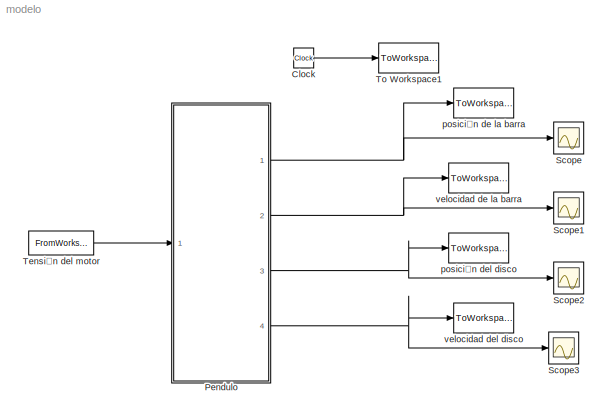
MODEL modelo
KIND model
BLOCK [Clock] Clock
  SID = 1
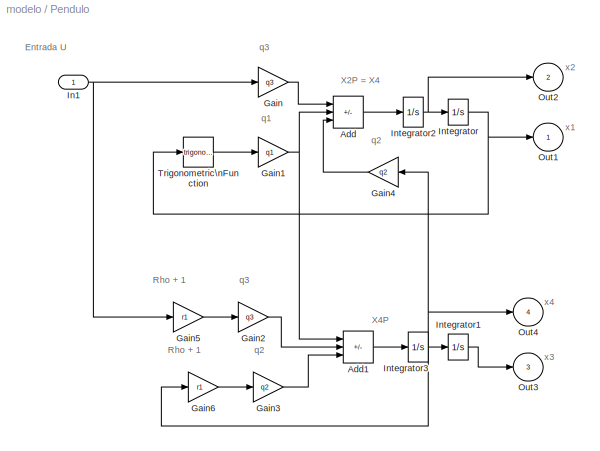
BLOCK [SubSystem] Pendulo
  Ports = [1, 4]
  RequestExecContextInheritance = off
  SID = 2
BLOCK [Sum] Pendulo/Add
  IconShape = rectangular
  Inputs = --+
  Ports = [3, 1]
  SID = 4
BLOCK [Sum] Pendulo/Add1
  IconShape = rectangular
  Inputs = ++-
  Ports = [3, 1]
  SID = 5
BLOCK [Gain] Pendulo/Gain
  Gain = q3
  SID = 6
BLOCK [Gain] Pendulo/Gain1
  Gain = q1
  SID = 7
BLOCK [Gain] Pendulo/Gain2
  Gain = q3
  SID = 8
BLOCK [Gain] Pendulo/Gain3
  Gain = q2
  SID = 48
BLOCK [Gain] Pendulo/Gain4
  Gain = q2
  SID = 42
BLOCK [Gain] Pendulo/Gain5
  Gain = r1
  SID = 45
BLOCK [Gain] Pendulo/Gain6
  Gain = r1
  SID = 49
BLOCK [Inport] Pendulo/In1
  SID = 3
BLOCK [Integrator] Pendulo/Integrator
  InitialCondition = x1_0
  Ports = [1, 1]
  SID = 10
BLOCK [Integrator] Pendulo/Integrator1
  InitialCondition = x3_0
  Ports = [1, 1]
  SID = 11
BLOCK [Integrator] Pendulo/Integrator2
  InitialCondition = x2_0
  Ports = [1, 1]
  SID = 12
BLOCK [Integrator] Pendulo/Integrator3
  InitialCondition = x4_0
  Ports = [1, 1]
  SID = 13
BLOCK [Outport] Pendulo/Out1
  SID = 16
BLOCK [Outport] Pendulo/Out2
  Port = 2
  SID = 17
BLOCK [Outport] Pendulo/Out3
  Port = 3
  SID = 18
BLOCK [Outport] Pendulo/Out4
  Port = 4
  SID = 19
BLOCK [Trigonometry] Pendulo/Trigonometric\nFunction
  Ports = [1, 1]
  SID = 14
BLOCK [Scope] Scope
  Floating = off
  NumInputPorts = 1
  Ports = [1]
  SID = 20
  ScopeSpecificationString = Simulink.scopes.TimeScopeBlockCfg('CurrentConfiguration', extmgr.ConfigurationSet(extmgr.Configuration('Core','General UI',true),extmgr.Configuration('Core','Source UI',true),extmgr.Configuration('Sources','WiredSimulink',true,'DataLoggingSaveFormat','StructureWithTime','DataLoggingLimitDataPoints',true,'DataLoggingDecimation','1','DataLoggingDecimateData',true),extmgr.Configuration('Visuals','Tim...<+1671ch>
BLOCK [Scope] Scope1
  Floating = off
  NumInputPorts = 1
  Ports = [1]
  SID = 21
  ScopeSpecificationString = Simulink.scopes.TimeScopeBlockCfg('CurrentConfiguration', extmgr.ConfigurationSet(extmgr.Configuration('Core','General UI',true),extmgr.Configuration('Core','Source UI',true),extmgr.Configuration('Sources','WiredSimulink',true,'DataLoggingVariableName','ScopeData1','DataLoggingSaveFormat','StructureWithTime','DataLoggingLimitDataPoints',true,'DataLoggingDecimation','1','DataLoggingDecimateData',tr...<+1680ch>
BLOCK [Scope] Scope2
  Floating = off
  NumInputPorts = 1
  Ports = [1]
  SID = 22
  ScopeSpecificationString = Simulink.scopes.TimeScopeBlockCfg('CurrentConfiguration', extmgr.ConfigurationSet(extmgr.Configuration('Core','General UI',true),extmgr.Configuration('Core','Source UI',true),extmgr.Configuration('Sources','WiredSimulink',true,'DataLoggingVariableName','ScopeData2','DataLoggingSaveFormat','StructureWithTime','DataLoggingLimitDataPoints',true,'DataLoggingDecimation','1','DataLoggingDecimateData',tr...<+1702ch>
BLOCK [Scope] Scope3
  Floating = off
  NumInputPorts = 1
  Ports = [1]
  SID = 23
  ScopeSpecificationString = Simulink.scopes.TimeScopeBlockCfg('CurrentConfiguration', extmgr.ConfigurationSet(extmgr.Configuration('Core','General UI',true),extmgr.Configuration('Core','Source UI',true),extmgr.Configuration('Sources','WiredSimulink',true,'DataLoggingVariableName','ScopeData3','DataLoggingSaveFormat','StructureWithTime','DataLoggingLimitDataPoints',true,'DataLoggingDecimation','1','DataLoggingDecimateData',tr...<+1694ch>
BLOCK [FromWorkspace] Tensión del motor
  SID = 24
  SampleTime = 0.01
  VariableName = [t control]
  ZeroCross = off
BLOCK [ToWorkspace] To Workspace1
  MaxDataPoints = inf
  Ports = [1]
  SID = 25
  SampleTime = -1
  VariableName = t_med
BLOCK [ToWorkspace] posición de la barra
  MaxDataPoints = inf
  Ports = [1]
  SID = 26
  SampleTime = -1
  VariableName = x1
BLOCK [ToWorkspace] posición del disco
  MaxDataPoints = inf
  Ports = [1]
  SID = 27
  SampleTime = -1
  VariableName = x3
BLOCK [ToWorkspace] velocidad de la barra
  MaxDataPoints = inf
  Ports = [1]
  SID = 28
  SampleTime = -1
  VariableName = x2
BLOCK [ToWorkspace] velocidad del disco
  MaxDataPoints = inf
  Ports = [1]
  SID = 29
  SampleTime = -1
  VariableName = x4
ANNOTATION Pendulo: Entrada U
ANNOTATION Pendulo: Rho + 1
ANNOTATION Pendulo: X2P = X4
ANNOTATION Pendulo: X4P
ANNOTATION Pendulo: q1
ANNOTATION Pendulo: q2
ANNOTATION Pendulo: q3
ANNOTATION Pendulo: x1
ANNOTATION Pendulo: x2
ANNOTATION Pendulo: x3
ANNOTATION Pendulo: x4
LINE Clock:1 -> To Workspace1:1
LINE Pendulo/Add1:1 -> Pendulo/Integrator3:1
LINE Pendulo/Add:1 -> Pendulo/Integrator2:1
NET Pendulo/Gain1:1 -> Pendulo/Add1:1, Pendulo/Add:2
LINE Pendulo/Gain2:1 -> Pendulo/Add1:2
LINE Pendulo/Gain3:1 -> Pendulo/Add1:3
LINE Pendulo/Gain4:1 -> Pendulo/Add:3
LINE Pendulo/Gain5:1 -> Pendulo/Gain2:1
LINE Pendulo/Gain6:1 -> Pendulo/Gain3:1
LINE Pendulo/Gain:1 -> Pendulo/Add:1
NET Pendulo/In1:1 -> Pendulo/Gain5:1, Pendulo/Gain:1
LINE Pendulo/Integrator1:1 -> Pendulo/Out3:1
NET Pendulo/Integrator2:1 -> Pendulo/Integrator:1, Pendulo/Out2:1
NET Pendulo/Integrator3:1 -> Pendulo/Gain4:1, Pendulo/Gain6:1, Pendulo/Integrator1:1, Pendulo/Out4:1
NET Pendulo/Integrator:1 -> Pendulo/Out1:1, Pendulo/Trigonometric\nFunction:1
LINE Pendulo/Trigonometric\nFunction:1 -> Pendulo/Gain1:1
NET Pendulo:1 -> Scope:1, posición de la barra:1
NET Pendulo:2 -> Scope1:1, velocidad de la barra:1
NET Pendulo:3 -> Scope2:1, posición del disco:1
NET Pendulo:4 -> Scope3:1, velocidad del disco:1
LINE Tensión del motor:1 -> Pendulo:1
note: NET lines group one-source signal fan-out (src -> all destinations, sorted); 1:1 wires keep LINE
